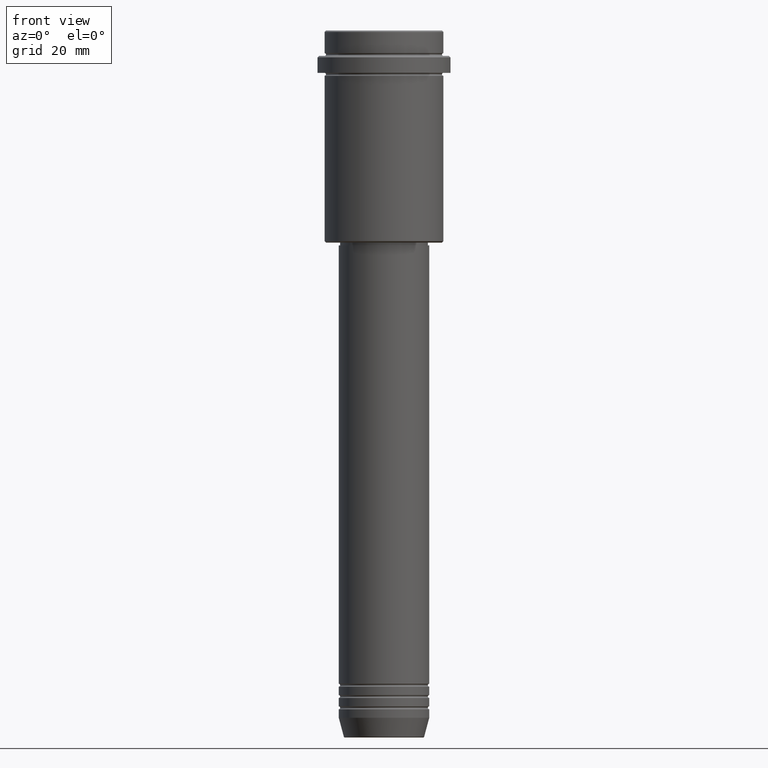
[diagram: clean part render]
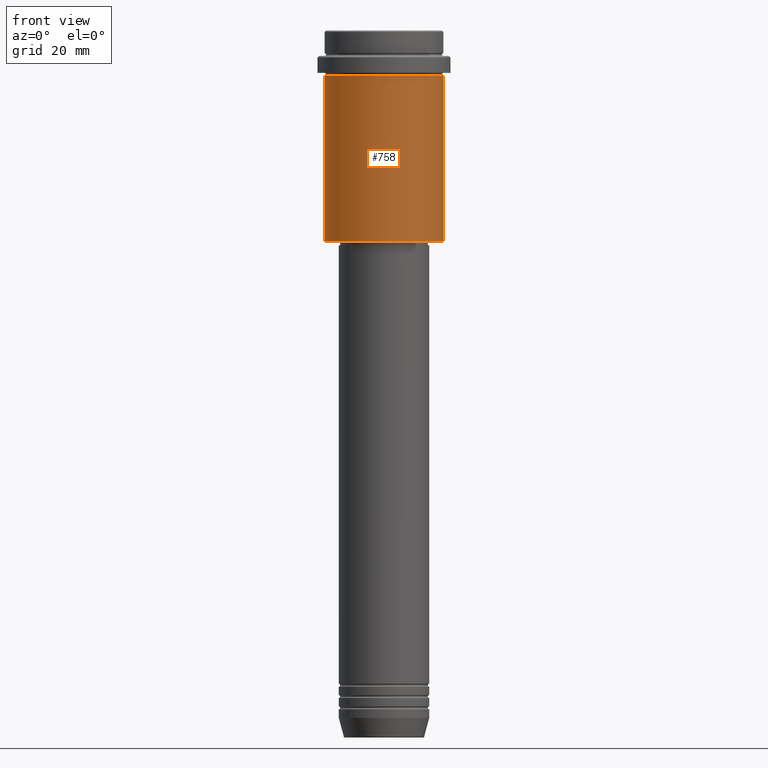
[diagram: same view with one face highlighted and labeled with its STEP entity id]
A machine part, front view. The second image highlights one B-rep face of the part: STEP entity #758.
In plain terms, the highlighted cylindrical surface (partial cylindrical patch) has radius 21 mm, axis along (-0, -0, 1).
Its self-contained STEP definition (entity closure, byte-faithful):
#44 = LINE ( 'NONE', #506, #482 ) ;
#70 = CARTESIAN_POINT ( 'NONE',  ( 21.00000000000000000, 0.000000000000000000, -16.00000000000000355 ) ) ;
#130 = CARTESIAN_POINT ( 'NONE',  ( 0.000000000000000000, 0.000000000000000000, -16.00000000000000355 ) ) ;
#159 = EDGE_CURVE ( 'NONE', #609, #727, #576, .T. ) ;
#188 = VERTEX_POINT ( 'NONE', #70 ) ;
#232 = ORIENTED_EDGE ( 'NONE', *, *, #1332, .T. ) ;
#258 = DIRECTION ( 'NONE',  ( 1.000000000000000000, 0.000000000000000000, 0.000000000000000000 ) ) ;
#297 = AXIS2_PLACEMENT_3D ( 'NONE', #654, #1083, #544 ) ;
#475 = CARTESIAN_POINT ( 'NONE',  ( -21.00000000000000000, 2.571758278209441661E-15, -74.50000000000001421 ) ) ;
#482 = VECTOR ( 'NONE', #1361, 1000.000000000000000 ) ;
#490 = ORIENTED_EDGE ( 'NONE', *, *, #159, .T. ) ;
#506 = CARTESIAN_POINT ( 'NONE',  ( 21.00000000000000000, 0.000000000000000000, 0.000000000000000000 ) ) ;
#511 = EDGE_CURVE ( 'NONE', #746, #188, #1408, .T. ) ;
#515 = DIRECTION ( 'NONE',  ( -0.000000000000000000, -0.000000000000000000, 1.000000000000000000 ) ) ;
#544 = DIRECTION ( 'NONE',  ( 1.000000000000000000, 0.000000000000000000, 0.000000000000000000 ) ) ;
#576 = CIRCLE ( 'NONE', #1140, 21.00000000000000000 ) ;
#588 = DIRECTION ( 'NONE',  ( -0.000000000000000000, -0.000000000000000000, 1.000000000000000000 ) ) ;
#609 = VERTEX_POINT ( 'NONE', #475 ) ;
#654 = CARTESIAN_POINT ( 'NONE',  ( 0.000000000000000000, 0.000000000000000000, 0.000000000000000000 ) ) ;
#727 = VERTEX_POINT ( 'NONE', #780 ) ;
#742 = CARTESIAN_POINT ( 'NONE',  ( 0.000000000000000000, 0.000000000000000000, -74.50000000000001421 ) ) ;
#746 = VERTEX_POINT ( 'NONE', #889 ) ;
#758 = ADVANCED_FACE ( 'NONE', ( #1116 ), #1338, .T. ) ;
#780 = CARTESIAN_POINT ( 'NONE',  ( 21.00000000000000000, 0.000000000000000000, -74.50000000000001421 ) ) ;
#803 = LINE ( 'NONE', #898, #1382 ) ;
#889 = CARTESIAN_POINT ( 'NONE',  ( -21.00000000000000000, 2.571758278209441661E-15, -16.00000000000000355 ) ) ;
#890 = EDGE_LOOP ( 'NONE', ( #1134, #490, #232, #1266 ) ) ;
#893 = AXIS2_PLACEMENT_3D ( 'NONE', #130, #914, #258 ) ;
#898 = CARTESIAN_POINT ( 'NONE',  ( -21.00000000000000000, 2.571758278209441661E-15, 0.000000000000000000 ) ) ;
#914 = DIRECTION ( 'NONE',  ( -0.000000000000000000, -0.000000000000000000, 1.000000000000000000 ) ) ;
#943 = DIRECTION ( 'NONE',  ( -1.000000000000000000, 0.000000000000000000, 0.000000000000000000 ) ) ;
#1083 = DIRECTION ( 'NONE',  ( -0.000000000000000000, -0.000000000000000000, 1.000000000000000000 ) ) ;
#1116 = FACE_OUTER_BOUND ( 'NONE', #890, .T. ) ;
#1134 = ORIENTED_EDGE ( 'NONE', *, *, #1159, .F. ) ;
#1140 = AXIS2_PLACEMENT_3D ( 'NONE', #742, #515, #943 ) ;
#1159 = EDGE_CURVE ( 'NONE', #609, #746, #803, .T. ) ;
#1266 = ORIENTED_EDGE ( 'NONE', *, *, #511, .F. ) ;
#1332 = EDGE_CURVE ( 'NONE', #727, #188, #44, .T. ) ;
#1338 = CYLINDRICAL_SURFACE ( 'NONE', #297, 21.00000000000000000 ) ;
#1361 = DIRECTION ( 'NONE',  ( -0.000000000000000000, -0.000000000000000000, 1.000000000000000000 ) ) ;
#1382 = VECTOR ( 'NONE', #588, 1000.000000000000000 ) ;
#1408 = CIRCLE ( 'NONE', #893, 21.00000000000000000 ) ;